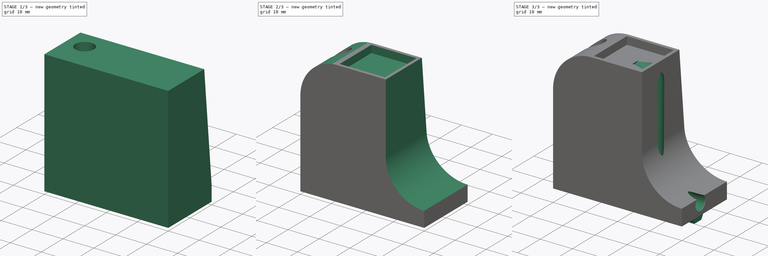
[diagram: build sequence overview — one tinted view per stage of 3, left to right]
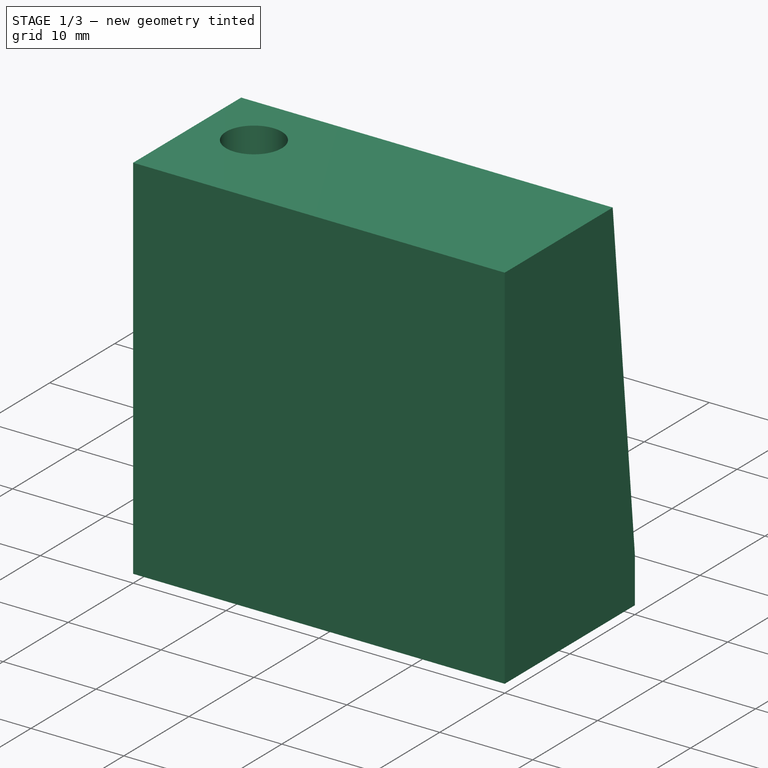
[diagram: stage 1 of 3 — iso view after this stage's code; geometry added in this stage tinted green]
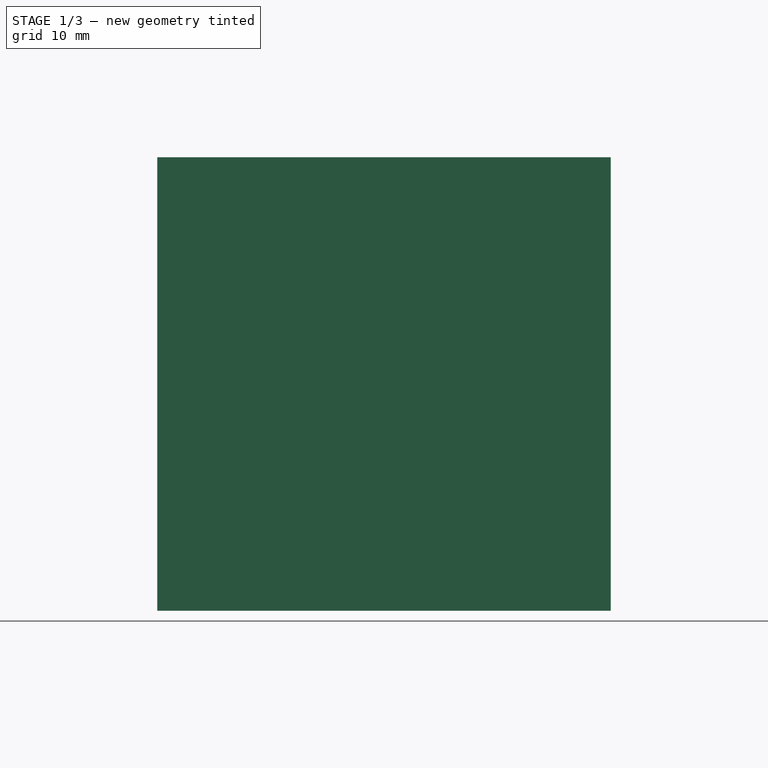
[diagram: stage 1 of 3 — front view after this stage's code; geometry added in this stage tinted green]
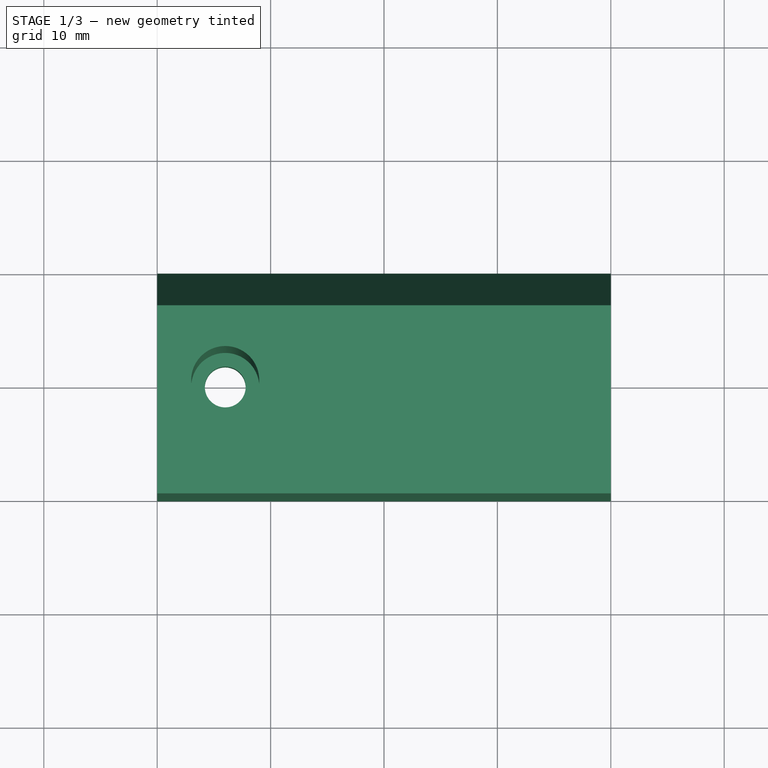
[diagram: stage 1 of 3 — top view after this stage's code; geometry added in this stage tinted green]
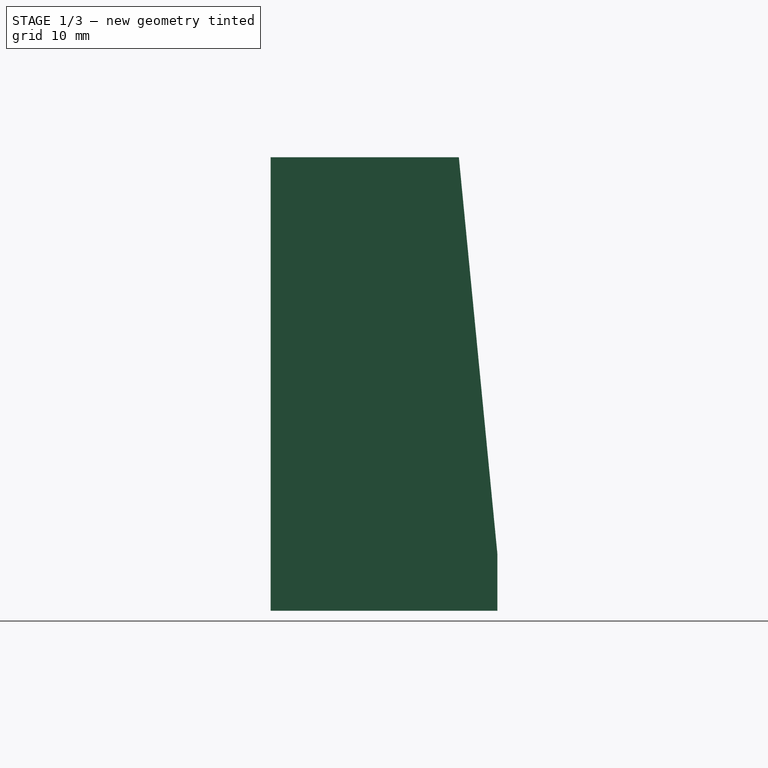
[diagram: stage 1 of 3 — right view after this stage's code; geometry added in this stage tinted green]
FCSTD DOCUMENT  (FreeCAD 1.0R39319 (Git))
Label: CaseThemometer
License: All rights reserved
LicenseURL: https://en.wikipedia.org/wiki/All_rights_reserved
objects: Sketcher::SketchObject×8, PartDesign::Pocket×4, PartDesign::Pad×2, App::VarSet×1, PartDesign::Point×1, PartDesign::SubtractivePipe×1, PartDesign::Chamfer×1, PartDesign::Body×1
note: 42 computed .brp shape members not serialized (recipe doc carries the construction recipe); baked Part::Feature solids carry a one-line shape summary decoded from their .brp

FEATURE [App::VarSet] VarSet
  CableChannel = 4.5
  CavityOffset = 3.2
  DX = 40
  DY = 20
  DZ = 40
  HeatsinkSize = 14.6
  ScrewByPass = 3.6
  ScrewHeadDepth = 35
  ScrewHeadDiameter = 6
  ScrewToBody = 6
  expr: ScrewHeadDepth = DZ - 5 mm
FEATURE [Sketcher::SketchObject] Sketch
  ArcFitTolerance = 1e-06
  AttachmentSupport = -> [XY_Plane]
  FullyConstrained = true
  MakeInternals = false
  MapMode = 5
  expr: Constraints[10] = VarSet.DY
  expr: Constraints[11] = VarSet.ScrewByPass
  expr: Constraints[15] = VarSet.ScrewToBody
  expr: Constraints[9] = VarSet.DX
  sketch-geometry (6):
    g0: LineSegment StartX=0 StartY=0 StartZ=0 EndX=40 EndY=0 EndZ=0
    g1: LineSegment StartX=40 StartY=0 StartZ=0 EndX=40 EndY=20 EndZ=0
    g2: LineSegment StartX=40 StartY=20 StartZ=0 EndX=0 EndY=20 EndZ=0
    g3: LineSegment StartX=0 StartY=20 StartZ=0 EndX=0 EndY=0 EndZ=0
    g4: Circle CenterX=6 CenterY=10 CenterZ=0 NormalX=0 NormalY=0 NormalZ=1 AngleXU=0 Radius=1.8
    g5: LineSegment [constr] StartX=6 StartY=10 StartZ=0 EndX=0 EndY=10 EndZ=0
  constraints (16):
    c: Coincident(g0,g1)
    c: Coincident(g1,g2)
    c: Coincident(g2,g3)
    c: Coincident(g3,g0)
    c: Horizontal(g0)
    c: Horizontal(g2)
    c: Vertical(g1)
    c: Vertical(g3)
    c: Coincident(g0,g-1)
    c: Distance(g0) = 40
    c: Distance(g3) = 20
    c: Diameter(g4) = 3.6
    c: Coincident(g5,g4)
    c: Symmetric(g3,g3,g5)
    c: Horizontal(g5)
    c: Distance(g5) = 6
FEATURE [PartDesign::Pad] Pad  label="Holder Body"
  Direction = (0,0,1)
  Length = 40
  Length2 = 10
  Profile = -> Sketch
  ReferenceAxis = -> Sketch [N_Axis]
  Refine = true
  Suppressed = false
  Type = 0
  expr: Length = VarSet.DZ
FEATURE [Sketcher::SketchObject] Sketch001
  ArcFitTolerance = 1e-06
  AttachmentSupport = -> [Pad]
  ExternalGeometry = -> [Pad]
  FullyConstrained = true
  MakeInternals = false
  MapMode = 5
  Placement = pos=(0,0,40) rot=(0,0,1;0rad)
  expr: Constraints[1] = VarSet.ScrewHeadDiameter
  sketch-geometry (1):
    g0: Circle CenterX=6 CenterY=10 CenterZ=0 NormalX=0 NormalY=0 NormalZ=1 AngleXU=0 Radius=3
  constraints (2):
    c: Coincident(g0,g-3)
    c: Diameter(g0) = 6
FEATURE [PartDesign::Pocket] Pocket  label="Screw Head"
  BaseFeature = -> Pad
  Direction = (0,0,-1)
  Length = 35
  Length2 = 5
  Profile = -> Sketch001
  ReferenceAxis = -> Sketch001 [N_Axis]
  Refine = true
  Suppressed = false
  Type = 0
  expr: Length = VarSet.ScrewHeadDepth
FEATURE [Sketcher::SketchObject] Sketch002
  ArcFitTolerance = 1e-06
  AttachmentSupport = -> [Pocket]
  ExternalGeometry = -> [Pocket]
  FullyConstrained = true
  MakeInternals = false
  MapMode = 5
  Placement = pos=(0,0,0) rot=(0.57735,-0.57735,-0.57735;2.0944rad)
  expr: Constraints[2] = VarSet.HeatsinkSize + 2 mm
  sketch-geometry (5):
    g0: LineSegment [constr] StartX=0 StartY=40 StartZ=0 EndX=-16.6 EndY=40 EndZ=0
    g1: LineSegment StartX=-16.6 StartY=40 StartZ=0 EndX=-20 EndY=40 EndZ=0
    g2: LineSegment [constr] StartX=-20 StartY=0 StartZ=0 EndX=-20 EndY=5 EndZ=0
    g3: LineSegment StartX=-20 StartY=40 StartZ=0 EndX=-20 EndY=5 EndZ=0
    g4: LineSegment StartX=-20 StartY=5 StartZ=0 EndX=-16.6 EndY=40 EndZ=0
  constraints (12):
    c: Coincident(g0,g-3)
    c: PointOnObject(g0,g-3)
    c: Distance(g0) = 16.6
    c: Coincident(g1,g0)
    c: Coincident(g1,g-4)
    c: Coincident(g2,g-4)
    c: PointOnObject(g2,g-4)
    c: Distance(g2) = 5
    c: Coincident(g3,g1)
    c: Coincident(g3,g2)
    c: Coincident(g4,g2)
    c: Coincident(g4,g0)
FEATURE [PartDesign::Pocket] Pocket001  label="Reduce to Heatsink DY"
  BaseFeature = -> Pocket
  Direction = (1,0,0)
  Length = 5
  Length2 = 5
  Profile = -> Sketch002
  ReferenceAxis = -> Sketch002 [N_Axis]
  Refine = true
  Suppressed = false
  Type = 1
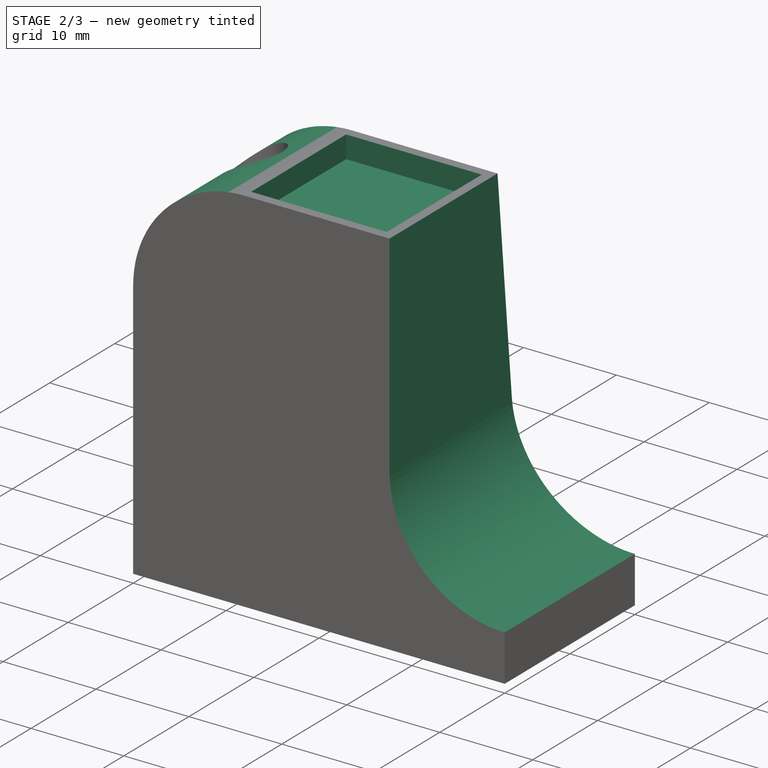
[diagram: stage 2 of 3 — iso view after this stage's code; geometry added in this stage tinted green]
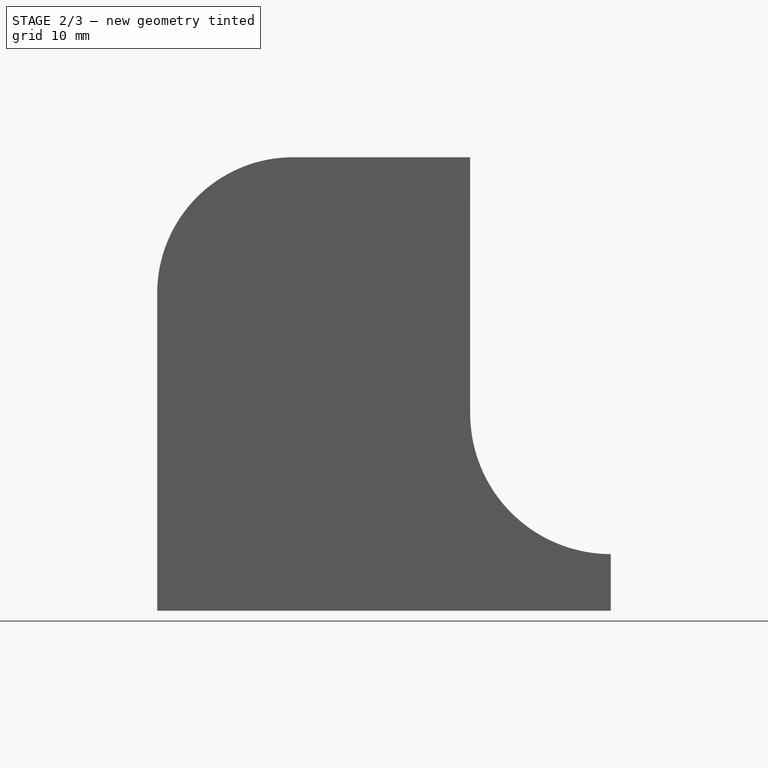
[diagram: stage 2 of 3 — front view after this stage's code; geometry added in this stage tinted green]
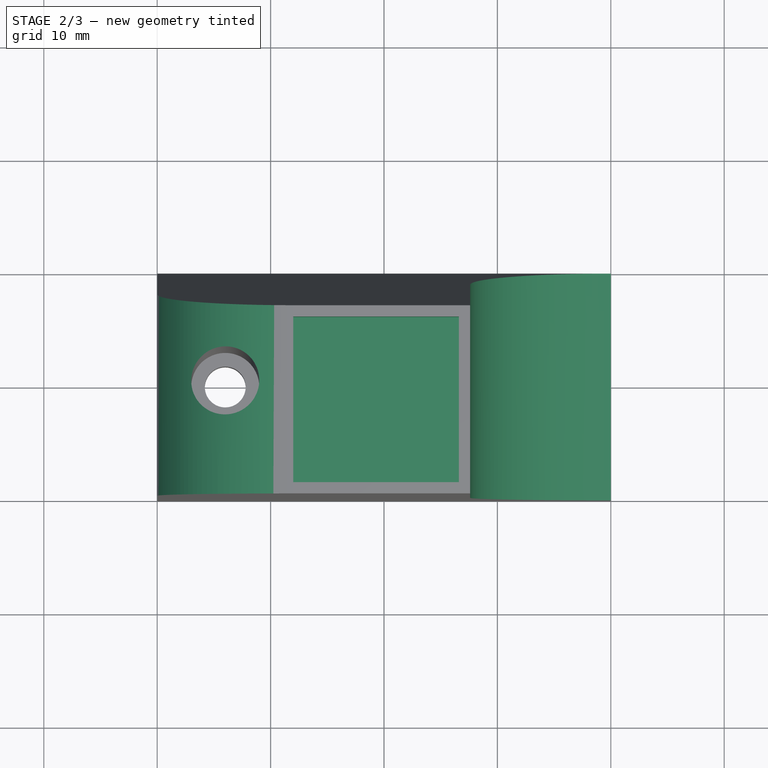
[diagram: stage 2 of 3 — top view after this stage's code; geometry added in this stage tinted green]
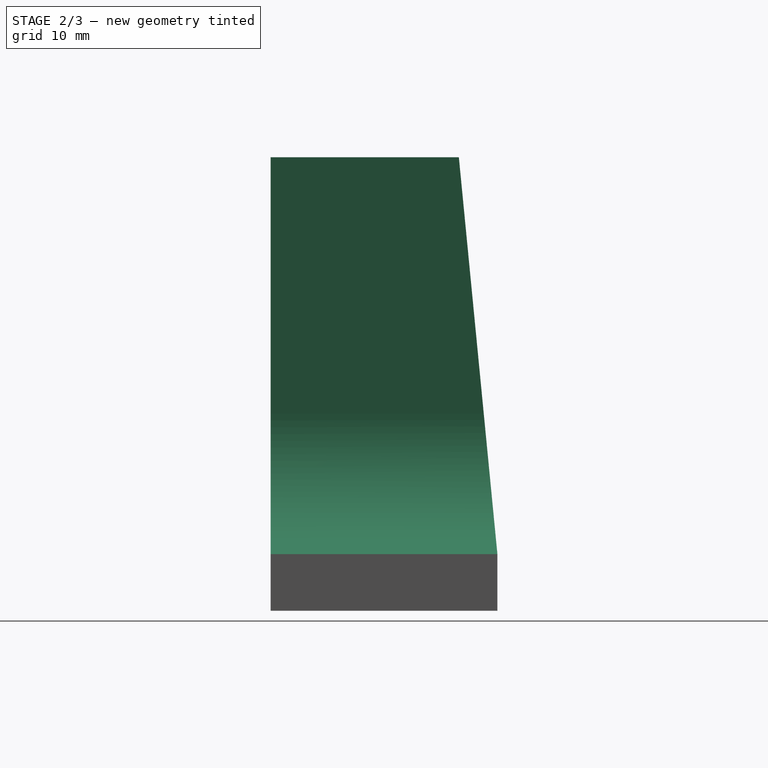
[diagram: stage 2 of 3 — right view after this stage's code; geometry added in this stage tinted green]
FEATURE [Sketcher::SketchObject] Sketch003
  ArcFitTolerance = 1e-06
  AttachmentSupport = -> [Pocket001]
  ExternalGeometry = -> [Pocket001]
  FullyConstrained = true
  MakeInternals = false
  MapMode = 5
  Placement = pos=(0,0,40) rot=(0,0,1;0rad)
  expr: Constraints[13] = VarSet.ScrewToBody
  expr: Constraints[8] = VarSet.HeatsinkSize
  sketch-geometry (7):
    g0: LineSegment StartX=12 StartY=15.6 StartZ=0 EndX=12 EndY=1 EndZ=0
    g1: LineSegment StartX=12 StartY=1 StartZ=0 EndX=26.6 EndY=1 EndZ=0
    g2: LineSegment StartX=26.6 StartY=1 StartZ=0 EndX=26.6 EndY=15.6 EndZ=0
    g3: LineSegment StartX=26.6 StartY=15.6 StartZ=0 EndX=12 EndY=15.6 EndZ=0
    g4: LineSegment [constr] StartX=6 StartY=10 StartZ=0 EndX=12 EndY=10 EndZ=0
    g5: LineSegment [constr] StartX=40 StartY=16.6 StartZ=0 EndX=26.6 EndY=15.6 EndZ=0
    g6: LineSegment [constr] StartX=40 StartY=0 StartZ=0 EndX=26.6 EndY=1 EndZ=0
  constraints (19):
    c: Coincident(g0,g1)
    c: Coincident(g1,g2)
    c: Coincident(g2,g3)
    c: Coincident(g3,g0)
    c: Vertical(g0)
    c: Vertical(g2)
    c: Horizontal(g1)
    c: Horizontal(g3)
    c: Distance(g1) = 14.6
    c: Equal(g0,g1)
    c: Coincident(g4,g-3)
    c: PointOnObject(g4,g0)
    c: Horizontal(g4)
    c: Distance(g4) = 6
    c: Coincident(g5,g-4)
    c: Coincident(g5,g2)
    c: Coincident(g6,g-5)
    c: Coincident(g6,g1)
    c: Equal(g6,g5)
FEATURE [PartDesign::Pocket] Pocket002  label="Heasink Slot"
  BaseFeature = -> Pocket001
  Direction = (0,0,-1)
  Length = 2.4
  Length2 = 5
  Profile = -> Sketch003
  ReferenceAxis = -> Sketch003 [N_Axis]
  Refine = true
  Suppressed = false
  Type = 0
FEATURE [Sketcher::SketchObject] Sketch004
  ArcFitTolerance = 1e-06
  AttachmentSupport = -> [Pocket002]
  ExternalGeometry = -> [Pocket002]
  FullyConstrained = true
  MakeInternals = false
  MapMode = 5
  Placement = pos=(0,0,0) rot=(1,0,0;1.5708rad)
  expr: Constraints[12] = VarSet.HeatsinkSize + 1 mm
  expr: Constraints[2] = VarSet.ScrewToBody * 2
  sketch-geometry (11):
    g0: LineSegment StartX=0 StartY=40 StartZ=0 EndX=12 EndY=40 EndZ=0
    g1: ArcOfCircle CenterX=12 CenterY=28 CenterZ=0 NormalX=0 NormalY=0 NormalZ=1 AngleXU=0 Radius=12 StartAngle=1.5708 EndAngle=3.14159
    g2: LineSegment [constr] StartX=12 StartY=40 StartZ=0 EndX=12 EndY=28 EndZ=0
    g3: LineSegment StartX=0 StartY=28 StartZ=0 EndX=0 EndY=40 EndZ=0
    g4: LineSegment [constr] StartX=12 StartY=40 StartZ=0 EndX=27.6 EndY=40 EndZ=0
    g5: LineSegment [constr] StartX=40 StartY=0 StartZ=0 EndX=40 EndY=5 EndZ=0
    g6: ArcOfCircle CenterX=40 CenterY=17.4 CenterZ=0 NormalX=0 NormalY=0 NormalZ=1 AngleXU=0 Radius=12.4 StartAngle=3.14159 EndAngle=4.71239
    g7: LineSegment [constr] StartX=40 StartY=17.4 StartZ=0 EndX=27.6 EndY=17.4 EndZ=0
    g8: LineSegment StartX=27.6 StartY=40 StartZ=0 EndX=27.6 EndY=17.4 EndZ=0
    g9: LineSegment StartX=27.6 StartY=40 StartZ=0 EndX=40 EndY=40 EndZ=0
    g10: LineSegment StartX=40 StartY=40 StartZ=0 EndX=40 EndY=5 EndZ=0
  constraints (28):
    c: Coincident(g0,g-3)
    c: PointOnObject(g0,g-3)
    c: Distance(g0) = 12
    c: Coincident(g1,g0)
    c: Coincident(g2,g0)
    c: Vertical(g2)
    c: Coincident(g2,g1)
    c: Tangent(g1,g-2) = 1.5708
    c: Coincident(g3,g1)
    c: Coincident(g3,g0)
    c: Coincident(g4,g0)
    c: PointOnObject(g4,g-3)
    c: Distance(g4) = 15.6
    c: Coincident(g5,g-4)
    c: PointOnObject(g5,g-4)
    c: Distance(g5) = 5
    c: PointOnObject(g6,g-4)
    c: Coincident(g6,g5)
    c: Coincident(g7,g6)
    c: Horizontal(g7)
    c: Coincident(g7,g6)
    c: Coincident(g8,g4)
    c: Vertical(g8)
    c: Coincident(g6,g8)
    c: Coincident(g9,g4)
    c: Coincident(g9,g-4)
    c: Coincident(g10,g9)
    c: Coincident(g10,g5)
FEATURE [PartDesign::Pocket] Pocket003  label="Front Shape"
  BaseFeature = -> Pocket002
  Direction = (0,1,-2e-16)
  Length = 5
  Length2 = 5
  Profile = -> Sketch004
  ReferenceAxis = -> Sketch004 [N_Axis]
  Refine = true
  Suppressed = false
  Type = 1
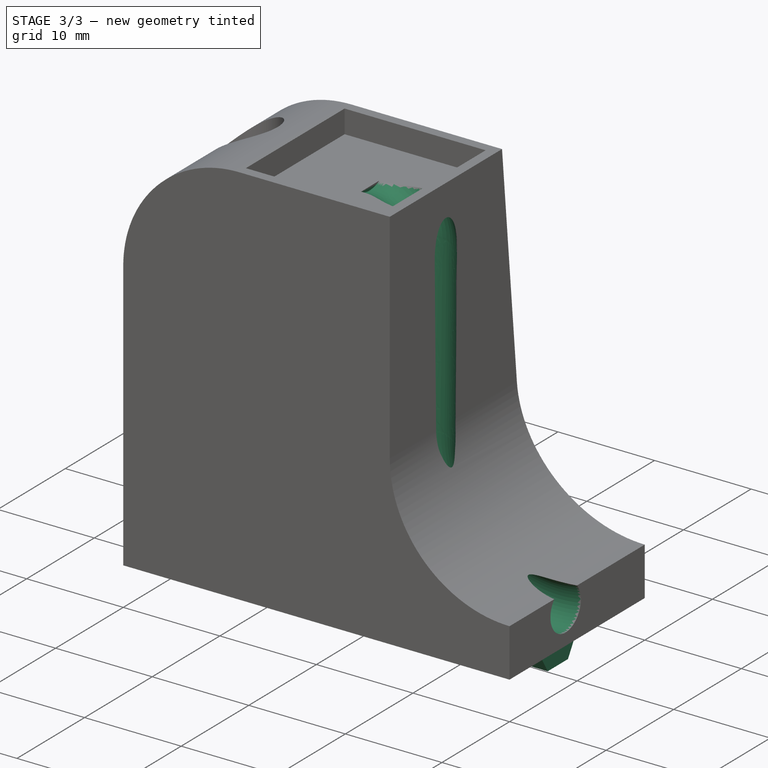
[diagram: stage 3 of 3 — iso view after this stage's code; geometry added in this stage tinted green]
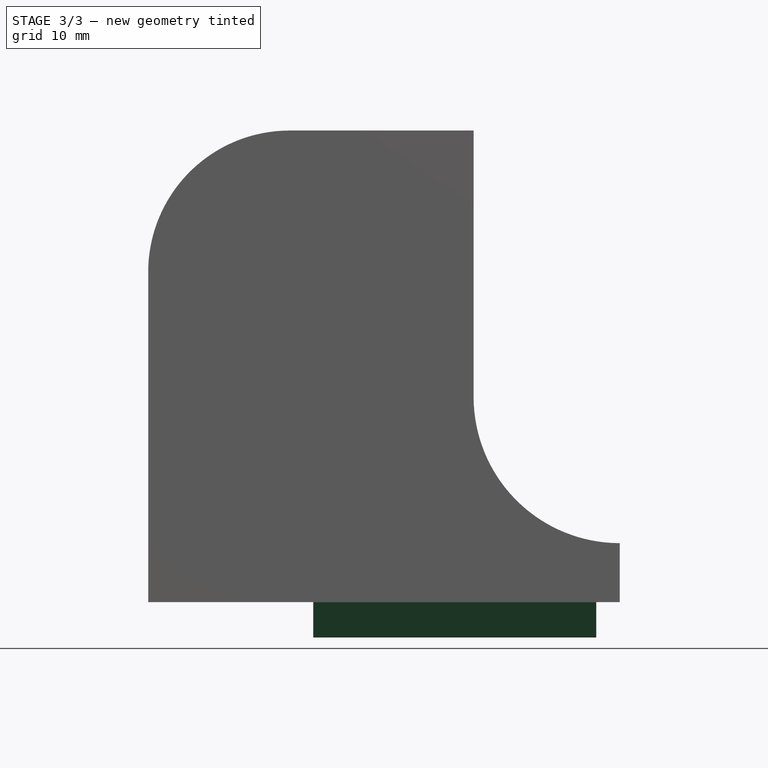
[diagram: stage 3 of 3 — front view after this stage's code; geometry added in this stage tinted green]
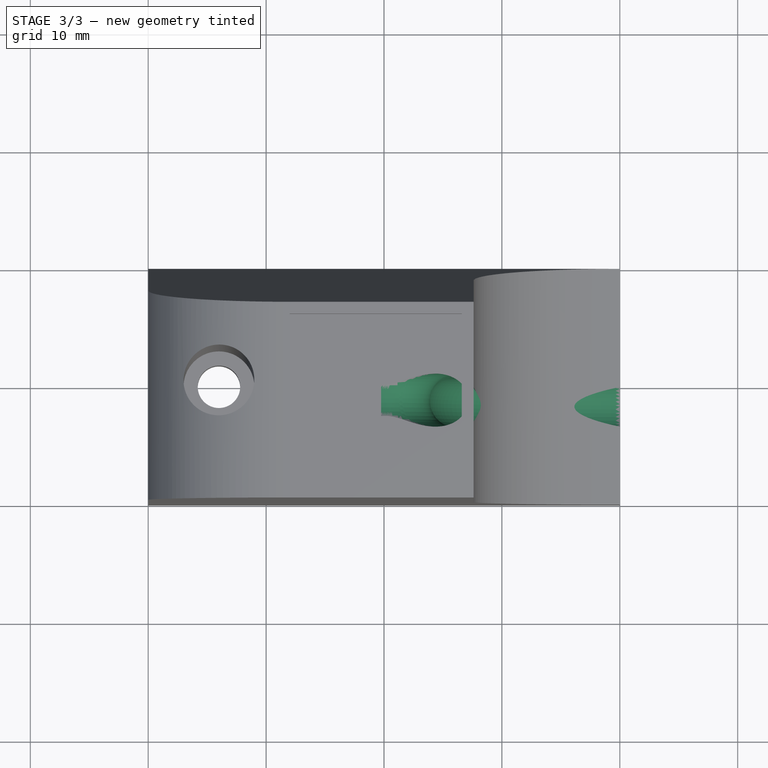
[diagram: stage 3 of 3 — top view after this stage's code; geometry added in this stage tinted green]
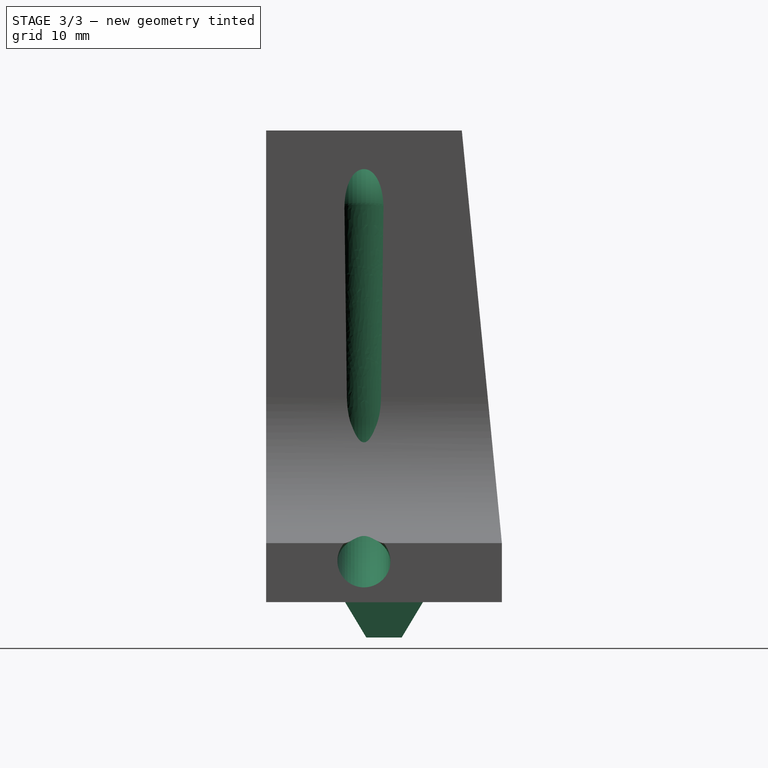
[diagram: stage 3 of 3 — right view after this stage's code; geometry added in this stage tinted green]
FEATURE [Sketcher::SketchObject] Sketch005
  ArcFitTolerance = 1e-06
  AttachmentSupport = -> [Pocket003]
  ExternalGeometry = -> [Pocket003]
  FullyConstrained = true
  MakeInternals = false
  MapMode = 5
  Placement = pos=(40,0,0) rot=(0.57735,0.57735,0.57735;2.0944rad)
  expr: Constraints[0] = VarSet.CableChannel
  expr: Constraints[6] = VarSet.HeatsinkSize / 2 + 1 mm
  expr: Constraints[7] = VarSet.CableChannel / 3
  sketch-geometry (3):
    g0: Circle CenterX=8.3 CenterY=3.5 CenterZ=0 NormalX=0 NormalY=0 NormalZ=1 AngleXU=0 Radius=2.25
    g1: LineSegment [constr] StartX=8.3 StartY=3.5 StartZ=0 EndX=8.3 EndY=5 EndZ=0
    g2: LineSegment [constr] StartX=8.3 StartY=5 StartZ=0 EndX=1.8e-15 EndY=5 EndZ=0
  constraints (8):
    c: Diameter(g0) = 4.5
    c: Coincident(g1,g0)
    c: Vertical(g1)
    c: Coincident(g2,g1)
    c: Coincident(g2,g-3)
    c: Horizontal(g2)
    c: Distance(g2) = 8.3
    c: Distance(g1) = 1.5
FEATURE [PartDesign::Point] DatumPoint  label="Channel Reference"
  AttacherType = Attacher::AttachEnginePoint
  AttachmentSupport = -> [Sketch005]
  MapMode = 36
  Placement = pos=(40,8.3,3.5) rot=(0.707107,0.707107,0;3.14159rad)
FEATURE [Sketcher::SketchObject] Sketch006
  ArcFitTolerance = 1e-06
  AttachmentSupport = -> [XZ_Plane,DatumPoint]
  ExternalGeometry = -> [Pocket003,DatumPoint]
  FullyConstrained = true
  MakeInternals = false
  MapMode = 53
  Placement = pos=(0,8.3,1.8e-15) rot=(1,0,0;1.5708rad)
  expr: Constraints[26] = VarSet.CavityOffset
  expr: Constraints[4] = VarSet.CableChannel / 2
  sketch-geometry (11):
    g0: LineSegment [constr] StartX=40 StartY=5 StartZ=0 EndX=40 EndY=3.5 EndZ=0
    g1: LineSegment [constr] StartX=26.6 StartY=37.6 StartZ=0 EndX=24.35 EndY=37.6 EndZ=0
    g2: ArcOfCircle CenterX=37.7373 CenterY=15.1373 CenterZ=0 NormalX=0 NormalY=0 NormalZ=1 AngleXU=0 Radius=11.8552 StartAngle=3.12954 EndAngle=4.90443
    g3: ArcOfCircle CenterX=20.1004 CenterY=33.3643 CenterZ=0 NormalX=0 NormalY=0 NormalZ=1 AngleXU=0 Radius=6 StartAngle=6.27113 EndAngle=7.85398
    g4: LineSegment [constr] StartX=20.1004 StartY=39.3643 StartZ=0 EndX=20.1004 EndY=33.3643 EndZ=0
    g5: LineSegment StartX=26.1 StartY=33.292 StartZ=0 EndX=25.8829 EndY=15.2801 EndZ=0
    g6: LineSegment [constr] StartX=26.1 StartY=33.292 StartZ=0 EndX=27.6 EndY=33.292 EndZ=0
    g7: LineSegment [constr] StartX=20.1004 StartY=33.3643 StartZ=0 EndX=26.1 EndY=33.292 EndZ=0
    g8: LineSegment [constr] StartX=37.7373 StartY=15.1373 StartZ=0 EndX=27.6 EndY=17.4 EndZ=0
    g9: LineSegment [constr] StartX=37.7373 StartY=15.1373 StartZ=0 EndX=40 EndY=5 EndZ=0
    g10: LineSegment [constr] StartX=37.7373 StartY=15.1373 StartZ=0 EndX=40 EndY=17.4 EndZ=0
  constraints (27):
    c: Coincident(g0,g-3)
    c: Coincident(g0,g-4)
    c: Coincident(g1,g-5)
    c: Horizontal(g1)
    c: Distance(g1) = 2.25
    c: Coincident(g2,g0)
    c: Coincident(g4,g3)
    c: Vertical(g4)
    c: Coincident(g4,g3)
    c: PointOnObject(g1,g3)
    c: Tangent(g5,g2) = -1.5708
    c: Tangent(g5,g3) = 1.5708
    c: Coincident(g6,g3)
    c: PointOnObject(g6,g-6)
    c: Horizontal(g6)
    c: Equal(g0,g6)
    c: Coincident(g7,g3)
    c: Coincident(g7,g3)
    c: Diameter(g3) = 12
    c: Coincident(g8,g2)
    c: Coincident(g8,g-6)
    c: Coincident(g9,g8)
    c: Coincident(g9,g0)
    c: Equal(g8,g9)
    c: Coincident(g10,g2)
    c: Coincident(g10,g-3)
    c: Distance(g10) = 3.2
FEATURE [PartDesign::SubtractivePipe] SubtractivePipe  label="Cable Channel"
  AuxilleryCurvelinear = true
  AuxillerySpineTangent = false
  BaseFeature = -> Pocket003
  Binormal = (0,0,0)
  Mode = 0
  Profile = -> Sketch005
  Refine = true
  Spine = -> Sketch006 [Edge3,Edge2,Edge1]
  SpineTangent = false
  Suppressed = false
  Transformation = 0
  Transition = 0
FEATURE [Sketcher::SketchObject] Sketch007
  ArcFitTolerance = 1e-06
  AttachmentSupport = -> [SubtractivePipe]
  ExternalGeometry = -> [SubtractivePipe]
  FullyConstrained = true
  MakeInternals = false
  MapMode = 5
  Placement = pos=(0,0,0) rot=(1,0,0;3.14159rad)
  expr: Constraints[18] = VarSet.ScrewToBody * 2
  sketch-geometry (7):
    g0: LineSegment StartX=14 StartY=-6.7 StartZ=0 EndX=14 EndY=-13.3 EndZ=0
    g1: LineSegment StartX=14 StartY=-13.3 StartZ=0 EndX=38 EndY=-13.3 EndZ=0
    g2: LineSegment StartX=38 StartY=-13.3 StartZ=0 EndX=38 EndY=-6.7 EndZ=0
    g3: LineSegment StartX=38 StartY=-6.7 StartZ=0 EndX=14 EndY=-6.7 EndZ=0
    g4: LineSegment [constr] StartX=38 StartY=-10 StartZ=0 EndX=40 EndY=-10 EndZ=0
    g5: LineSegment [constr] StartX=14 StartY=-10 StartZ=0 EndX=12 EndY=-10 EndZ=0
    g6: LineSegment [constr] StartX=12 StartY=-10 StartZ=0 EndX=0 EndY=-10 EndZ=0
  constraints (20):
    c: Coincident(g0,g1)
    c: Coincident(g1,g2)
    c: Coincident(g2,g3)
    c: Coincident(g3,g0)
    c: Vertical(g0)
    c: Vertical(g2)
    c: Horizontal(g1)
    c: Horizontal(g3)
    c: Distance(g2) = 6.6
    c: Symmetric(g2,g2,g4)
    c: Symmetric(g-3,g-3,g4)
    c: Horizontal(g4)
    c: Symmetric(g0,g0,g5)
    c: Horizontal(g5)
    c: Equal(g5,g4)
    c: Coincident(g6,g5)
    c: PointOnObject(g6,g-2)
    c: Horizontal(g6)
    c: Distance(g6) = 12
    c: Distance(g4) = 2
FEATURE [PartDesign::Pad] Pad001  label="Extrusion Guide"
  BaseFeature = -> SubtractivePipe
  Direction = (0,0,-1)
  Length = 3
  Length2 = 10
  Profile = -> Sketch007
  ReferenceAxis = -> Sketch007 [N_Axis]
  Refine = true
  Suppressed = false
  Type = 0
FEATURE [PartDesign::Chamfer] Chamfer  label="Extrusion Guide Print Fix"
  Angle = 45
  Base = -> Pad001 [Edge54,Edge50]
  BaseFeature = -> Pad001
  ChamferType = 1
  FlipDirection = false
  Refine = true
  Size = 2.99
  Size2 = 1.8
  SupportTransform = false
  Suppressed = false
  UseAllEdges = false
FEATURE [PartDesign::Body] Body
  AllowCompound = false
  Group = -> [Sketch,Pad,Sketch001,Pocket,Sketch002,Pocket001,Sketch003,Pocket002,Sketch004,Pocket003,Sketch005,DatumPoint,Sketch006,SubtractivePipe,Sketch007,Pad001,Chamfer]
  Origin = -> Origin
  Tip = -> Chamfer
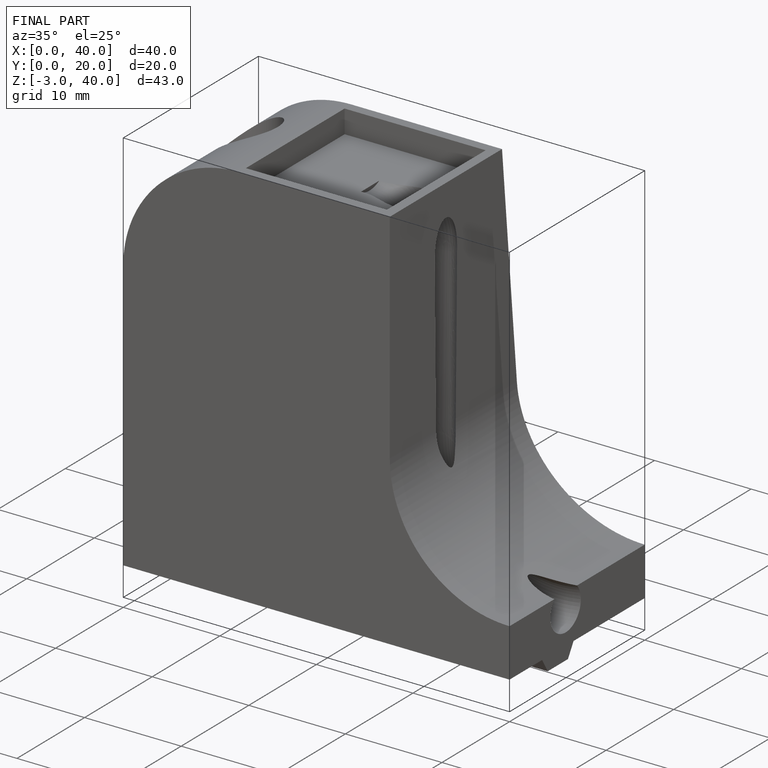
[diagram: finished part — iso view with bounding-box wireframe]
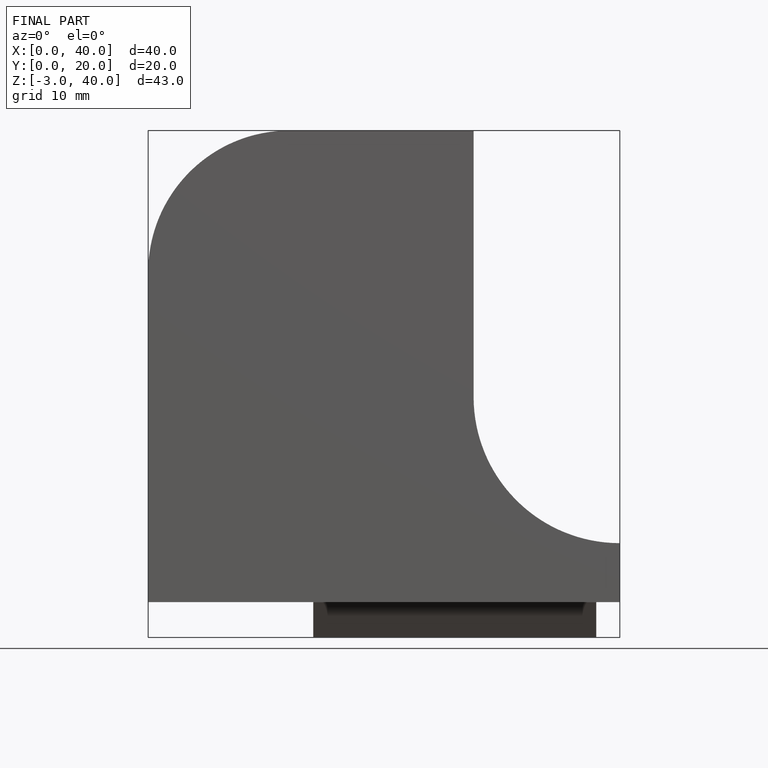
[diagram: finished part — front view with bounding-box wireframe]
